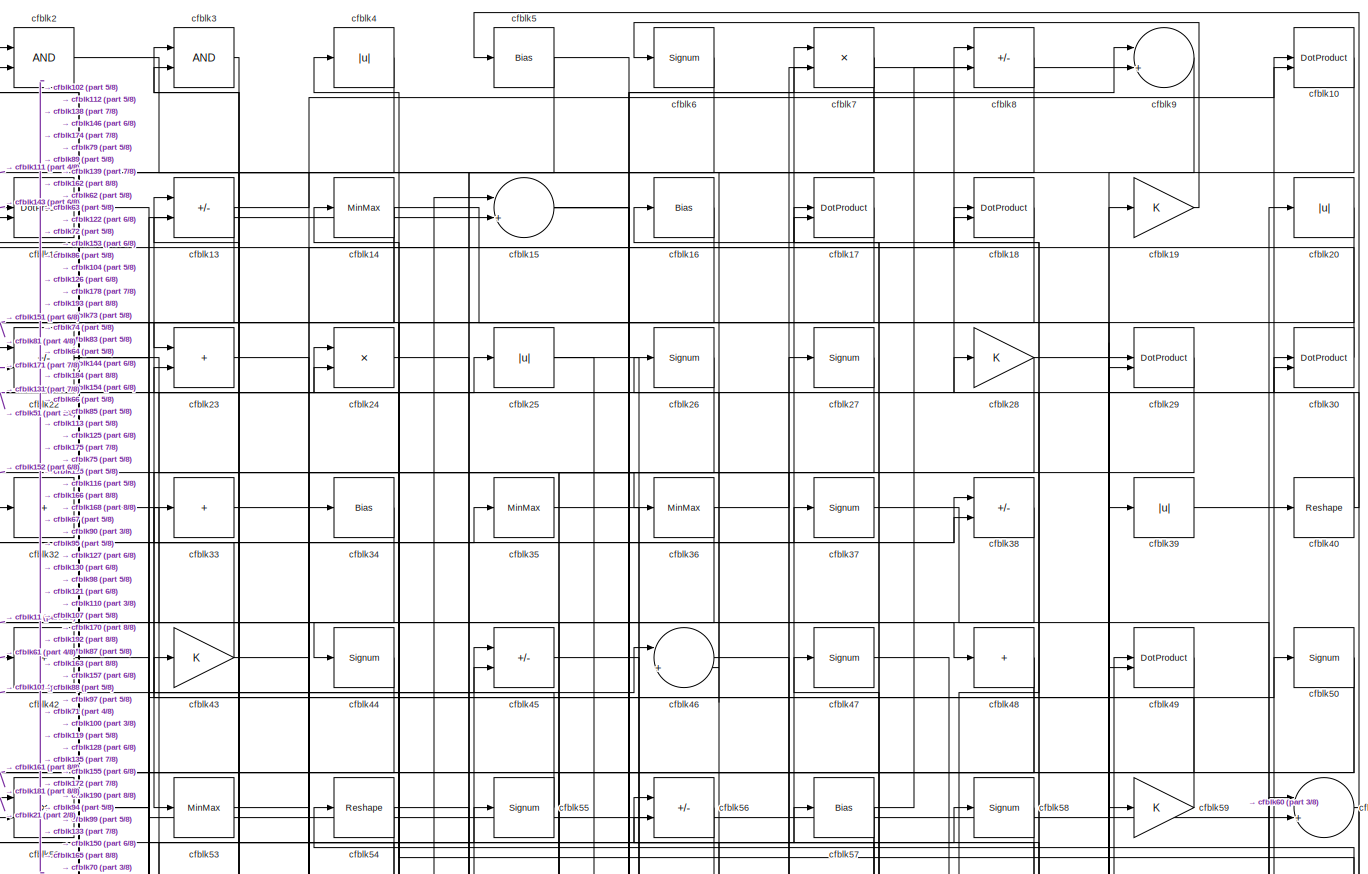
[diagram: root canvas - part 1/8, full width, top band]
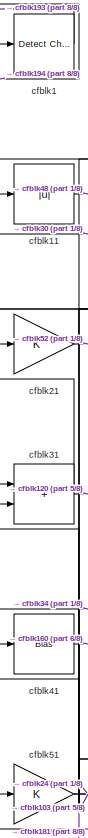
[diagram: root canvas - part 2/8, top left region]
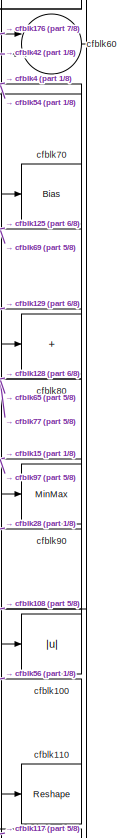
[diagram: root canvas - part 3/8, middle right region]
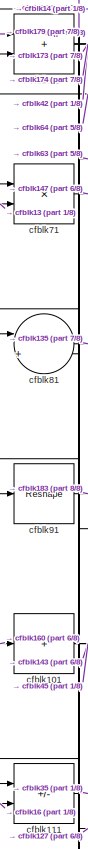
[diagram: root canvas - part 4/8, middle left region]
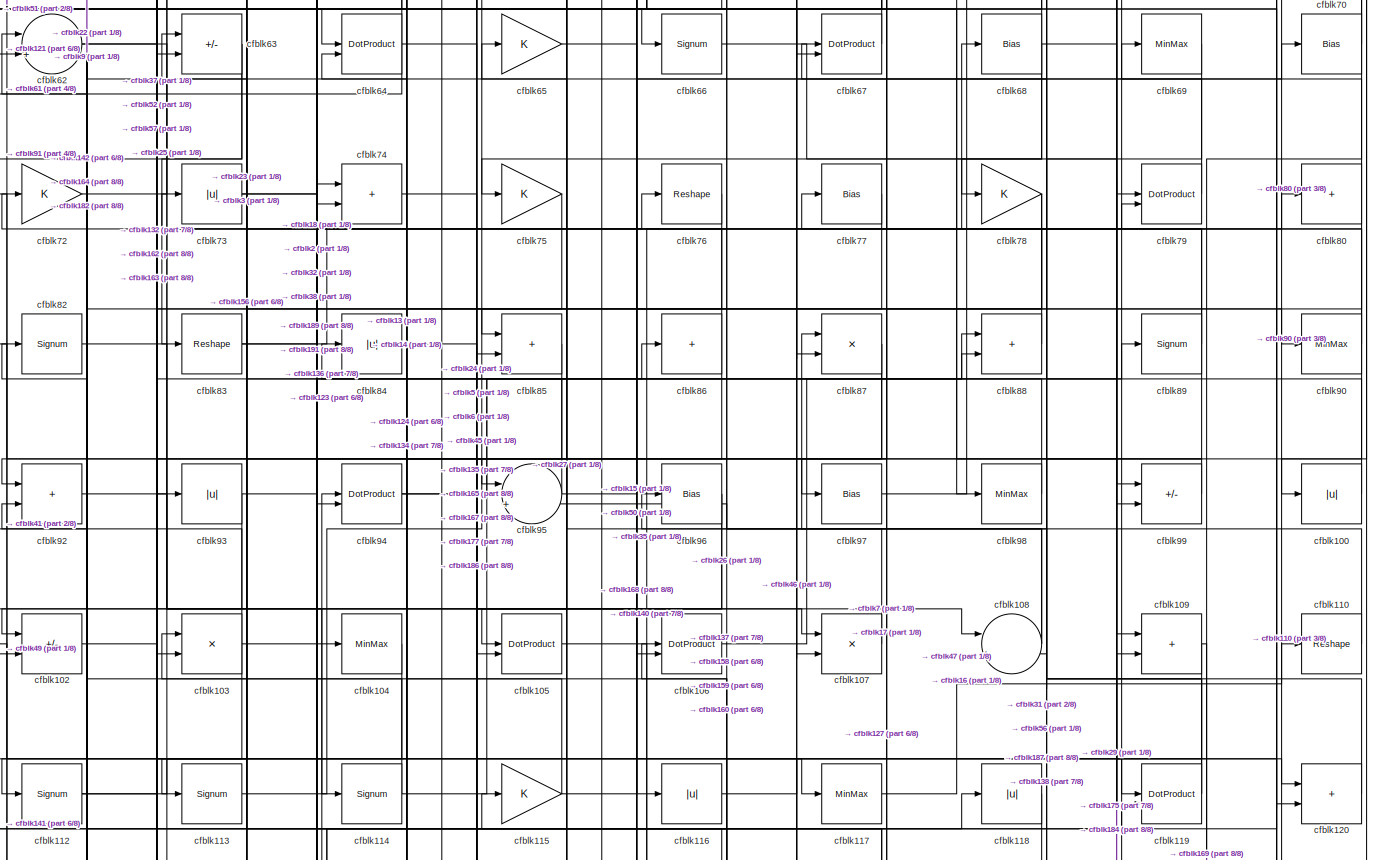
[diagram: root canvas - part 5/8, full width, middle band]
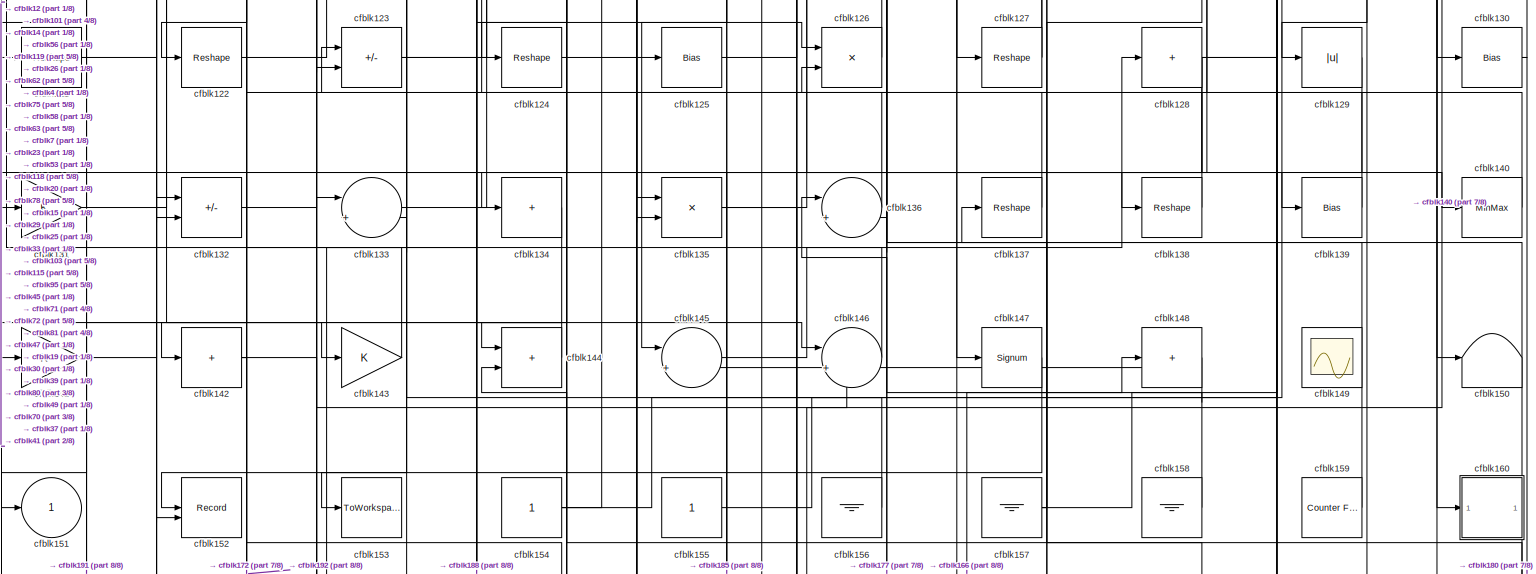
[diagram: root canvas - part 6/8, full width, bottom band]
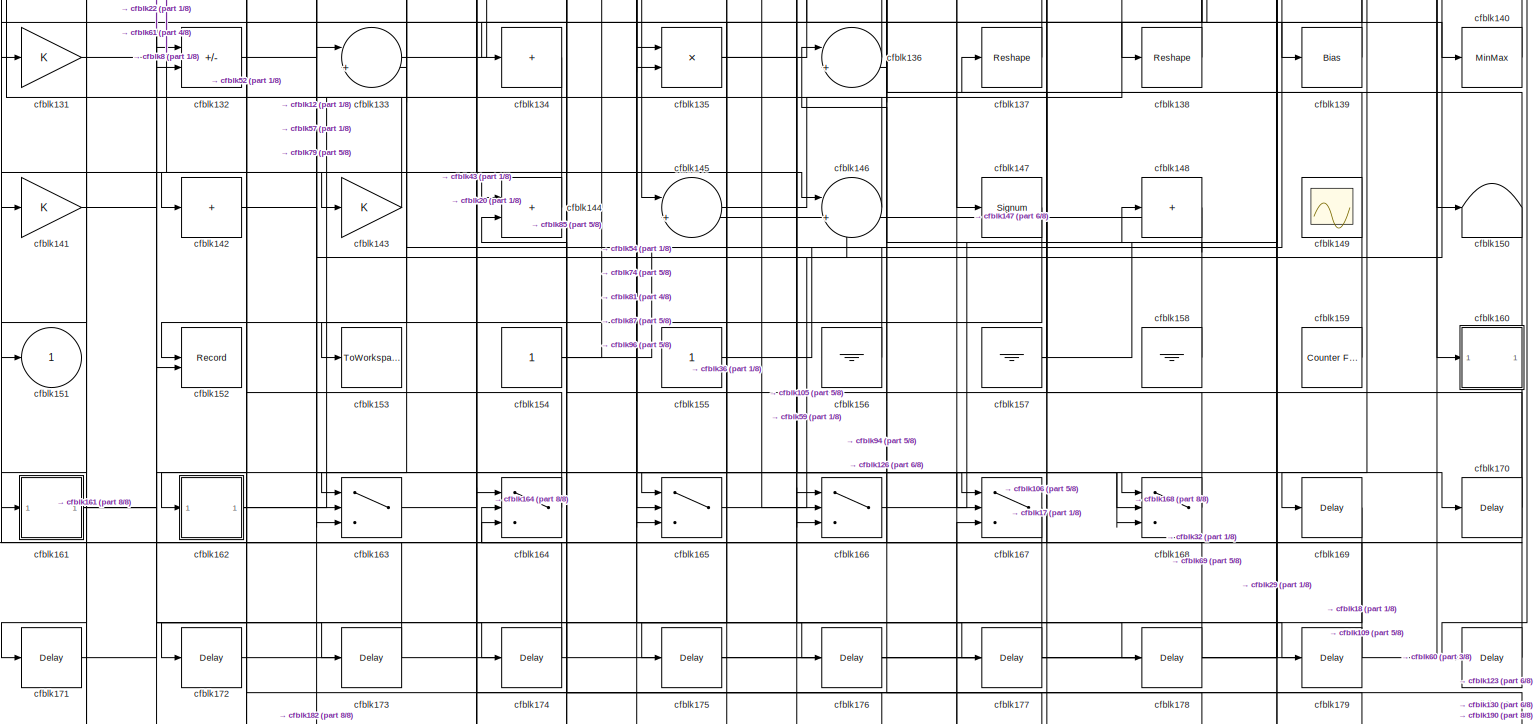
[diagram: root canvas - part 7/8, full width, bottom band]
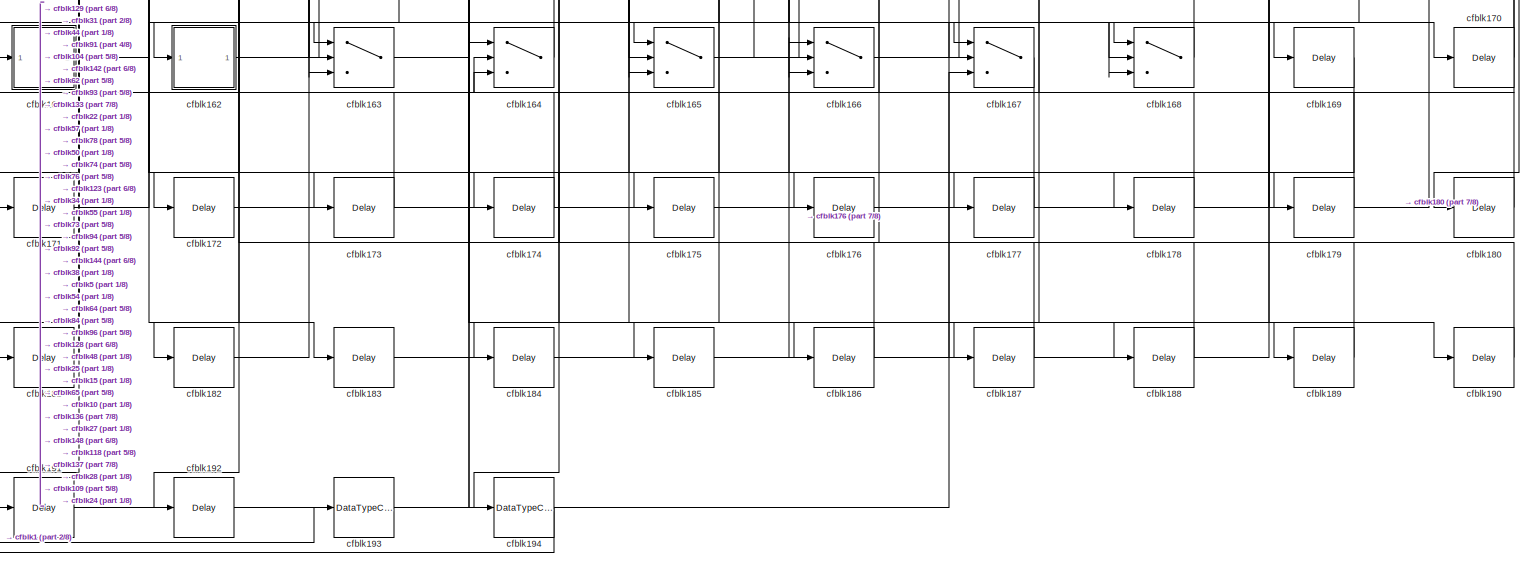
[diagram: root canvas - part 8/8, full width, bottom band]
MODEL slx_eba4e66bc9e5
KIND model
CONFIG AbsTol = auto
CONFIG EnableMultiTasking = off
CONFIG FixedStep = auto
CONFIG MaxStep = auto
CONFIG MinStep = auto
CONFIG RelTol = 1e-3
CONFIG SampleTimeConstraint = Unconstrained
CONFIG SolverName = VariableStepAuto
CONFIG StartTime = 0.0
CONFIG StopTime = 10.0
BLOCK [Reference] cfblk1  REF=simulink/Logic and Bit
Operations/Detect
Change
  LibrarySourceBlock = hdlsllib/Logic and Bit\nOperations/Detect\nChange
  SourceBlock = simulink/Logic and Bit\nOperations/Detect\nChange
  SourceType = Detect Change
BLOCK [DotProduct] cfblk10
  OutDataTypeStr = Inherit: Inherit via internal rule
BLOCK [Abs] cfblk100
  SaturateOnIntegerOverflow = off
BLOCK [Sum] cfblk101
  IconShape = rectangular
  Inputs = +
BLOCK [Sum] cfblk102
  IconShape = rectangular
  Inputs = +-
BLOCK [Product] cfblk103
  Inputs = */
  RndMeth = Zero
  SaturateOnIntegerOverflow = on
BLOCK [MinMax] cfblk104
BLOCK [DotProduct] cfblk105
  OutDataTypeStr = Inherit: Inherit via internal rule
BLOCK [DotProduct] cfblk106
  OutDataTypeStr = Inherit: Inherit via internal rule
BLOCK [Product] cfblk107
  Inputs = */
  RndMeth = Zero
  SaturateOnIntegerOverflow = on
BLOCK [Sum] cfblk108
  Inputs = |++
BLOCK [Sum] cfblk109
  IconShape = rectangular
BLOCK [Abs] cfblk11
  SaturateOnIntegerOverflow = off
BLOCK [Reshape] cfblk110
BLOCK [Sum] cfblk111
  IconShape = rectangular
  Inputs = +-
BLOCK [Signum] cfblk112
BLOCK [Signum] cfblk113
BLOCK [Signum] cfblk114
BLOCK [Gain] cfblk115
BLOCK [Abs] cfblk116
  SaturateOnIntegerOverflow = off
BLOCK [MinMax] cfblk117
BLOCK [Abs] cfblk118
  SaturateOnIntegerOverflow = off
BLOCK [DotProduct] cfblk119
  OutDataTypeStr = Inherit: Inherit via internal rule
BLOCK [DotProduct] cfblk12
  OutDataTypeStr = Inherit: Inherit via internal rule
BLOCK [Sum] cfblk120
  IconShape = rectangular
BLOCK [Reshape] cfblk121
BLOCK [Reshape] cfblk122
BLOCK [Sum] cfblk123
  IconShape = rectangular
  Inputs = +-
BLOCK [Reshape] cfblk124
BLOCK [Bias] cfblk125
  Bias = 0.0
  SaturateOnIntegerOverflow = off
BLOCK [Product] cfblk126
  Inputs = */
  RndMeth = Zero
  SaturateOnIntegerOverflow = on
BLOCK [Reshape] cfblk127
BLOCK [Sum] cfblk128
  IconShape = rectangular
  Inputs = +
BLOCK [Abs] cfblk129
  SaturateOnIntegerOverflow = off
BLOCK [Sum] cfblk13
  IconShape = rectangular
  Inputs = +-
BLOCK [Bias] cfblk130
  Bias = 0.0
  SaturateOnIntegerOverflow = off
BLOCK [Gain] cfblk131
BLOCK [Sum] cfblk132
  IconShape = rectangular
  Inputs = +-
BLOCK [Sum] cfblk133
  Inputs = |++
BLOCK [Sum] cfblk134
  IconShape = rectangular
  Inputs = +
BLOCK [Product] cfblk135
  Inputs = */
  RndMeth = Zero
  SaturateOnIntegerOverflow = on
BLOCK [Sum] cfblk136
  Inputs = |++
BLOCK [Reshape] cfblk137
BLOCK [Reshape] cfblk138
BLOCK [Bias] cfblk139
  Bias = 0.0
  SaturateOnIntegerOverflow = off
BLOCK [MinMax] cfblk14
BLOCK [MinMax] cfblk140
BLOCK [Gain] cfblk141
BLOCK [Sum] cfblk142
  IconShape = rectangular
  Inputs = +
BLOCK [Gain] cfblk143
BLOCK [Sum] cfblk144
  IconShape = rectangular
BLOCK [Sum] cfblk145
  Inputs = |++
BLOCK [Sum] cfblk146
  Inputs = |++
BLOCK [Signum] cfblk147
BLOCK [Sum] cfblk148
  IconShape = rectangular
  Inputs = +
BLOCK [Scope] cfblk149
  Floating = on
  NumInputPorts = 1
  ScopeSpecificationString = Simulink.scopes.TimeScopeBlockCfg('CurrentConfiguration', extmgr.ConfigurationSet(extmgr.Configuration('Core','General UI',true,'FigureColor',[0.156862745098039 0.156862745098039 0.156862745098039]),extmgr.Configuration('Core','Source UI',true),extmgr.Configuration('Sources','WiredSimulink',true,'DataLoggingVariableName','ScopeData1','DataLoggingSaveFormat','StructureWithTime','DataLoggingLimitDat...<+2713ch>
BLOCK [Sum] cfblk15
  Inputs = |++
BLOCK [Terminator] cfblk150
BLOCK [Outport] cfblk151
  VectorParamsAs1DForOutWhenUnconnected = off
BLOCK [Record] cfblk152
  CompatibilityTag = XY
  FileSettingsInternal = {"entries":[{"content":{"excelSettings":{"content":{},"type":"Streamout.ExcelSettings"}},"type":"Streamout.FileSettingStorage","uuid":""}],"packageUris":["http:\/\/schema.mathworks.com\/mf0\/streamout_blocks\/R2020a"],"version":"1.0"}
  Layout = [1 1]
  SignalsInternal = {"entries":[{"content":{"signals":[{"content":{"blockPath":[],"dimensions":[1],"domain":"","lineColor":"#a2142f","plots":[1],"port":1,"sid":[""],"signalID":39,"signalName":"cfblk128"},"type":"RecordBlkView.Signal","uuid":""},{"content":{"blockPath":[],"dimensions":[1],"domain":"","lineColor":"#139fff","plots":[1],"port":2,"sid":[""],"signalID":43,"signalName":"cfblk26"},"type":"RecordBlkView.Signa...<+159ch>
  VisualizationBindings = {"xyplotplugin":{"info":[{"series":[{"bindingParametersList":[{"parameter":"X-Axis","signalID":39,"signalName":"cfblk128"},{"parameter":"Y-Axis","signalID":43,"signalName":"cfblk26"}],"seriesID":55489}],"subplotID":1}]}}
  st = -1
BLOCK [ToWorkspace] cfblk153
  MaxDataPoints = inf
  SampleTime = -1
  SaveFormat = Timeseries
  VariableName = simout
BLOCK [Constant] cfblk154
  SampleTime = -1
BLOCK [Constant] cfblk155
  SampleTime = -1
BLOCK [Ground] cfblk156
BLOCK [Ground] cfblk157
BLOCK [Ground] cfblk158
BLOCK [Reference] cfblk159  REF=hdlsllib/Sources/Counter
Free-Running
  SourceBlock = hdlsllib/Sources/Counter\nFree-Running
  SourceType = Counter Free-Running
BLOCK [Bias] cfblk16
  Bias = 0.0
  SaturateOnIntegerOverflow = off
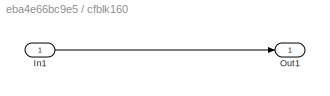
BLOCK [SubSystem] cfblk160
  LibrarySourceBlock = hdlsllib/Ports &\nSubsystems/Subsystem
BLOCK [Inport] cfblk160/In1
BLOCK [Outport] cfblk160/Out1
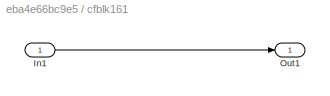
BLOCK [SubSystem] cfblk161
  LibrarySourceBlock = hdlsllib/Ports &\nSubsystems/Subsystem
BLOCK [Inport] cfblk161/In1
BLOCK [Outport] cfblk161/Out1
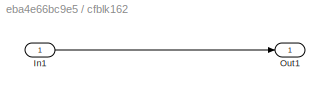
BLOCK [SubSystem] cfblk162
  LibrarySourceBlock = hdlsllib/Ports &\nSubsystems/Subsystem
BLOCK [Inport] cfblk162/In1
BLOCK [Outport] cfblk162/Out1
BLOCK [Switch] cfblk163
  InputSameDT = off
  SaturateOnIntegerOverflow = off
BLOCK [Switch] cfblk164
  InputSameDT = off
  SaturateOnIntegerOverflow = off
BLOCK [Switch] cfblk165
  InputSameDT = off
  SaturateOnIntegerOverflow = off
BLOCK [Switch] cfblk166
  InputSameDT = off
  SaturateOnIntegerOverflow = off
BLOCK [Switch] cfblk167
  InputSameDT = off
  SaturateOnIntegerOverflow = off
BLOCK [Switch] cfblk168
  InputSameDT = off
  SaturateOnIntegerOverflow = off
BLOCK [Delay] cfblk169
  InputPortMap = u0
  SampleTime = 1
BLOCK [DotProduct] cfblk17
  OutDataTypeStr = Inherit: Inherit via internal rule
BLOCK [Delay] cfblk170
  InputPortMap = u0
  SampleTime = 1
BLOCK [Delay] cfblk171
  InputPortMap = u0
  SampleTime = 1
BLOCK [Delay] cfblk172
  InputPortMap = u0
  SampleTime = 1
BLOCK [Delay] cfblk173
  InputPortMap = u0
  SampleTime = 1
BLOCK [Delay] cfblk174
  InputPortMap = u0
  SampleTime = 1
BLOCK [Delay] cfblk175
  InputPortMap = u0
  SampleTime = 1
BLOCK [Delay] cfblk176
  InputPortMap = u0
  SampleTime = 1
BLOCK [Delay] cfblk177
  InputPortMap = u0
  SampleTime = 1
BLOCK [Delay] cfblk178
  InputPortMap = u0
  SampleTime = 1
BLOCK [Delay] cfblk179
  InputPortMap = u0
  SampleTime = 1
BLOCK [DotProduct] cfblk18
  OutDataTypeStr = Inherit: Inherit via internal rule
BLOCK [Delay] cfblk180
  InputPortMap = u0
  SampleTime = 1
BLOCK [Delay] cfblk181
  InputPortMap = u0
  SampleTime = 1
BLOCK [Delay] cfblk182
  InputPortMap = u0
  SampleTime = 1
BLOCK [Delay] cfblk183
  InputPortMap = u0
  SampleTime = 1
BLOCK [Delay] cfblk184
  InputPortMap = u0
  SampleTime = 1
BLOCK [Delay] cfblk185
  InputPortMap = u0
  SampleTime = 1
BLOCK [Delay] cfblk186
  InputPortMap = u0
  SampleTime = 1
BLOCK [Delay] cfblk187
  InputPortMap = u0
  SampleTime = 1
BLOCK [Delay] cfblk188
  InputPortMap = u0
  SampleTime = 1
BLOCK [Delay] cfblk189
  InputPortMap = u0
  SampleTime = 1
BLOCK [Gain] cfblk19
BLOCK [Delay] cfblk190
  InputPortMap = u0
  SampleTime = 1
BLOCK [Delay] cfblk191
  InputPortMap = u0
  SampleTime = 1
BLOCK [Delay] cfblk192
  InputPortMap = u0
  SampleTime = 1
BLOCK [DataTypeConversion] cfblk193
  OutDataTypeStr = uint8
  RndMeth = Floor
  SaturateOnIntegerOverflow = off
BLOCK [DataTypeConversion] cfblk194
  OutDataTypeStr = uint8
  RndMeth = Floor
  SaturateOnIntegerOverflow = off
BLOCK [Logic] cfblk2
  AllPortsSameDT = off
  OutDataTypeStr = boolean
BLOCK [Abs] cfblk20
  SaturateOnIntegerOverflow = off
BLOCK [Gain] cfblk21
BLOCK [Sum] cfblk22
  IconShape = rectangular
  Inputs = +-
BLOCK [Sum] cfblk23
  IconShape = rectangular
BLOCK [Product] cfblk24
  Inputs = */
  RndMeth = Zero
  SaturateOnIntegerOverflow = on
BLOCK [Abs] cfblk25
  SaturateOnIntegerOverflow = off
BLOCK [Signum] cfblk26
BLOCK [Signum] cfblk27
BLOCK [Gain] cfblk28
BLOCK [DotProduct] cfblk29
  OutDataTypeStr = Inherit: Inherit via internal rule
BLOCK [Logic] cfblk3
  AllPortsSameDT = off
  OutDataTypeStr = boolean
BLOCK [DotProduct] cfblk30
  OutDataTypeStr = Inherit: Inherit via internal rule
BLOCK [Sum] cfblk31
  IconShape = rectangular
BLOCK [Sum] cfblk32
  IconShape = rectangular
  Inputs = +
BLOCK [Sum] cfblk33
  IconShape = rectangular
  Inputs = +
BLOCK [Bias] cfblk34
  Bias = 0.0
  SaturateOnIntegerOverflow = off
BLOCK [MinMax] cfblk35
BLOCK [MinMax] cfblk36
BLOCK [Signum] cfblk37
BLOCK [Sum] cfblk38
  IconShape = rectangular
  Inputs = +-
BLOCK [Abs] cfblk39
  SaturateOnIntegerOverflow = off
BLOCK [Abs] cfblk4
  SaturateOnIntegerOverflow = off
BLOCK [Reshape] cfblk40
BLOCK [Bias] cfblk41
  Bias = 0.0
  SaturateOnIntegerOverflow = off
BLOCK [Sum] cfblk42
  IconShape = rectangular
  Inputs = +
BLOCK [Gain] cfblk43
BLOCK [Signum] cfblk44
BLOCK [Sum] cfblk45
  IconShape = rectangular
  Inputs = +-
BLOCK [Sum] cfblk46
  Inputs = |++
BLOCK [Signum] cfblk47
BLOCK [Sum] cfblk48
  IconShape = rectangular
  Inputs = +
BLOCK [DotProduct] cfblk49
  OutDataTypeStr = Inherit: Inherit via internal rule
BLOCK [Bias] cfblk5
  Bias = 0.0
  SaturateOnIntegerOverflow = off
BLOCK [Signum] cfblk50
BLOCK [Gain] cfblk51
BLOCK [Product] cfblk52
  Inputs = */
  RndMeth = Zero
  SaturateOnIntegerOverflow = on
BLOCK [MinMax] cfblk53
BLOCK [Reshape] cfblk54
BLOCK [Signum] cfblk55
BLOCK [Sum] cfblk56
  IconShape = rectangular
  Inputs = +-
BLOCK [Bias] cfblk57
  Bias = 0.0
  SaturateOnIntegerOverflow = off
BLOCK [Signum] cfblk58
BLOCK [Gain] cfblk59
BLOCK [Signum] cfblk6
BLOCK [Sum] cfblk60
  Inputs = |++
BLOCK [Sum] cfblk61
  IconShape = rectangular
BLOCK [Sum] cfblk62
  Inputs = |++
BLOCK [Sum] cfblk63
  IconShape = rectangular
  Inputs = +-
BLOCK [DotProduct] cfblk64
  OutDataTypeStr = Inherit: Inherit via internal rule
BLOCK [Gain] cfblk65
BLOCK [Signum] cfblk66
BLOCK [DotProduct] cfblk67
  OutDataTypeStr = Inherit: Inherit via internal rule
BLOCK [Bias] cfblk68
  Bias = 0.0
  SaturateOnIntegerOverflow = off
BLOCK [MinMax] cfblk69
BLOCK [Product] cfblk7
  Inputs = */
  RndMeth = Zero
  SaturateOnIntegerOverflow = on
BLOCK [Bias] cfblk70
  Bias = 0.0
  SaturateOnIntegerOverflow = off
BLOCK [Product] cfblk71
  Inputs = */
  RndMeth = Zero
  SaturateOnIntegerOverflow = on
BLOCK [Gain] cfblk72
BLOCK [Abs] cfblk73
  SaturateOnIntegerOverflow = off
BLOCK [Sum] cfblk74
  IconShape = rectangular
BLOCK [Gain] cfblk75
BLOCK [Reshape] cfblk76
BLOCK [Bias] cfblk77
  Bias = 0.0
  SaturateOnIntegerOverflow = off
BLOCK [Gain] cfblk78
BLOCK [DotProduct] cfblk79
  OutDataTypeStr = Inherit: Inherit via internal rule
BLOCK [Sum] cfblk8
  IconShape = rectangular
  Inputs = +-
BLOCK [Sum] cfblk80
  IconShape = rectangular
  Inputs = +
BLOCK [Sum] cfblk81
  Inputs = |++
BLOCK [Signum] cfblk82
BLOCK [Reshape] cfblk83
BLOCK [Abs] cfblk84
  SaturateOnIntegerOverflow = off
BLOCK [Sum] cfblk85
  IconShape = rectangular
BLOCK [Sum] cfblk86
  IconShape = rectangular
  Inputs = +
BLOCK [Product] cfblk87
  Inputs = */
  RndMeth = Zero
  SaturateOnIntegerOverflow = on
BLOCK [Sum] cfblk88
  IconShape = rectangular
BLOCK [Signum] cfblk89
BLOCK [Sum] cfblk9
  Inputs = |++
BLOCK [MinMax] cfblk90
BLOCK [Reshape] cfblk91
BLOCK [Sum] cfblk92
  IconShape = rectangular
BLOCK [Abs] cfblk93
  SaturateOnIntegerOverflow = off
BLOCK [DotProduct] cfblk94
  OutDataTypeStr = Inherit: Inherit via internal rule
BLOCK [Sum] cfblk95
  Inputs = |++
BLOCK [Bias] cfblk96
  Bias = 0.0
  SaturateOnIntegerOverflow = off
BLOCK [Bias] cfblk97
  Bias = 0.0
  SaturateOnIntegerOverflow = off
BLOCK [MinMax] cfblk98
BLOCK [Sum] cfblk99
  IconShape = rectangular
  Inputs = +-
LINE cfblk100:1 -> cfblk28:1
NET cfblk101:1 -> cfblk143:1, cfblk45:2
LINE cfblk102:1 -> cfblk37:1
NET cfblk103:1 -> cfblk123:2, cfblk41:1, cfblk86:1
LINE cfblk104:1 -> cfblk182:1
LINE cfblk105:1 -> cfblk140:1
LINE cfblk106:1 -> cfblk89:1
LINE cfblk107:1 -> cfblk26:1
NET cfblk108:1 -> cfblk73:1, cfblk87:1
NET cfblk109:1 -> cfblk136:2, cfblk169:1
LINE cfblk10:1 -> cfblk49:2
LINE cfblk110:1 -> cfblk56:1
LINE cfblk111:1 -> cfblk35:1
NET cfblk112:1 -> cfblk117:1, cfblk88:2
LINE cfblk113:1 -> cfblk45:1
NET cfblk114:1 -> cfblk82:1, cfblk88:1
NET cfblk115:1 -> cfblk14:1, cfblk9:1
LINE cfblk116:1 -> cfblk119:1
LINE cfblk117:1 -> cfblk110:1
LINE cfblk118:1 -> cfblk187:1
NET cfblk119:1 -> cfblk56:2, cfblk96:1
LINE cfblk11:1 -> cfblk48:1
LINE cfblk120:1 -> cfblk67:1
LINE cfblk121:1 -> cfblk62:2
LINE cfblk122:1 -> cfblk58:1
NET cfblk123:1 -> cfblk118:1, cfblk188:1
LINE cfblk124:1 -> cfblk145:1
LINE cfblk125:1 -> cfblk70:1
LINE cfblk126:1 -> cfblk33:1
NET cfblk127:1 -> cfblk72:1, cfblk81:2
NET cfblk128:1 -> cfblk152:1, cfblk185:1, cfblk30:1, cfblk80:1
LINE cfblk129:1 -> cfblk191:1
LINE cfblk12:1 -> cfblk139:1
NET cfblk130:1 -> cfblk180:1, cfblk30:2
LINE cfblk131:1 -> cfblk8:1
LINE cfblk132:1 -> cfblk79:2
LINE cfblk133:1 -> cfblk20:1
LINE cfblk134:1 -> cfblk171:1
NET cfblk135:1 -> cfblk179:1, cfblk59:1
LINE cfblk136:1 -> cfblk94:1
LINE cfblk137:1 -> cfblk106:1
LINE cfblk138:1 -> cfblk32:1
LINE cfblk139:1 -> cfblk18:1
NET cfblk13:1 -> cfblk10:2, cfblk71:2
LINE cfblk140:1 -> cfblk123:1
LINE cfblk141:1 -> cfblk119:2
NET cfblk142:1 -> cfblk146:2, cfblk192:1
LINE cfblk143:1 -> cfblk12:1
LINE cfblk144:1 -> cfblk141:1
LINE cfblk145:1 -> cfblk128:1
LINE cfblk146:1 -> cfblk12:2
LINE cfblk147:1 -> cfblk172:1
LINE cfblk148:1 -> cfblk145:2
NET cfblk14:1 -> cfblk151:1, cfblk81:1, cfblk99:1
NET cfblk154:1 -> cfblk15:1, cfblk49:1
LINE cfblk155:1 -> cfblk39:1
LINE cfblk156:1 -> cfblk63:1
NET cfblk157:1 -> cfblk19:1, cfblk47:1
LINE cfblk158:1 -> cfblk115:1
LINE cfblk159:1 -> cfblk103:1
NET cfblk15:1 -> cfblk168:3, cfblk67:2, cfblk7:2, cfblk90:1
LINE cfblk160/In1:1 -> cfblk160/Out1:1
NET cfblk160:1 -> cfblk101:1, cfblk95:2
LINE cfblk161/In1:1 -> cfblk161/Out1:1
NET cfblk161:1 -> cfblk167:1, cfblk176:1
LINE cfblk162/In1:1 -> cfblk162/Out1:1
NET cfblk162:1 -> cfblk50:1, cfblk74:1
LINE cfblk163:1 -> cfblk55:1
LINE cfblk164:1 -> cfblk92:2
LINE cfblk165:1 -> cfblk10:1
LINE cfblk166:1 -> cfblk148:1
LINE cfblk167:1 -> cfblk164:2
LINE cfblk168:1 -> cfblk137:1
LINE cfblk169:1 -> cfblk194:1
LINE cfblk16:1 -> cfblk111:2
LINE cfblk170:1 -> cfblk24:2
LINE cfblk171:1 -> cfblk22:2
LINE cfblk172:1 -> cfblk29:1
LINE cfblk173:1 -> cfblk132:1
LINE cfblk174:1 -> cfblk52:2
LINE cfblk175:1 -> cfblk79:1
LINE cfblk176:1 -> cfblk60:1
LINE cfblk177:1 -> cfblk126:2
LINE cfblk178:1 -> cfblk17:2
LINE cfblk179:1 -> cfblk61:1
LINE cfblk17:1 -> cfblk44:1
LINE cfblk180:1 -> cfblk164:3
LINE cfblk181:1 -> cfblk31:2
LINE cfblk182:1 -> cfblk133:1
LINE cfblk183:1 -> cfblk166:1
LINE cfblk184:1 -> cfblk109:2
LINE cfblk185:1 -> cfblk167:3
LINE cfblk186:1 -> cfblk64:2
LINE cfblk187:1 -> cfblk62:1
LINE cfblk188:1 -> cfblk144:2
LINE cfblk189:1 -> cfblk164:1
LINE cfblk18:1 -> cfblk63:2
LINE cfblk190:1 -> cfblk136:1
LINE cfblk191:1 -> cfblk94:2
LINE cfblk192:1 -> cfblk27:1
LINE cfblk193:1 -> cfblk34:1
LINE cfblk194:1 -> cfblk1:1
LINE cfblk19:1 -> cfblk6:1
LINE cfblk1:1 -> cfblk193:1
LINE cfblk20:1 -> cfblk144:1
LINE cfblk21:1 -> cfblk52:1
NET cfblk22:1 -> cfblk107:2, cfblk15:2, cfblk170:1
LINE cfblk23:1 -> cfblk146:1
LINE cfblk24:1 -> cfblk66:1
NET cfblk25:1 -> cfblk130:1, cfblk166:2
LINE cfblk26:1 -> cfblk152:2
LINE cfblk27:1 -> cfblk75:1
NET cfblk28:1 -> cfblk190:1, cfblk53:1
LINE cfblk29:1 -> cfblk125:1
LINE cfblk2:1 -> cfblk74:2
LINE cfblk30:1 -> cfblk11:1
NET cfblk31:1 -> cfblk120:1, cfblk21:1
LINE cfblk32:1 -> cfblk104:1
LINE cfblk33:1 -> cfblk36:1
LINE cfblk34:1 -> cfblk51:1
LINE cfblk35:1 -> cfblk98:1
NET cfblk36:1 -> cfblk175:1, cfblk9:2
LINE cfblk37:1 -> cfblk150:1
LINE cfblk38:1 -> cfblk184:1
LINE cfblk39:1 -> cfblk40:1
LINE cfblk3:1 -> cfblk23:1
NET cfblk40:1 -> cfblk3:2, cfblk5:1
LINE cfblk41:1 -> cfblk160:1
LINE cfblk42:1 -> cfblk60:2
NET cfblk43:1 -> cfblk178:1, cfblk2:1
LINE cfblk44:1 -> cfblk161:1
LINE cfblk45:1 -> cfblk127:1
LINE cfblk46:1 -> cfblk87:2
LINE cfblk47:1 -> cfblk99:2
NET cfblk48:1 -> cfblk165:1, cfblk181:1
LINE cfblk49:1 -> cfblk102:2
LINE cfblk4:1 -> cfblk122:1
NET cfblk50:1 -> cfblk102:1, cfblk166:3
NET cfblk51:1 -> cfblk24:1, cfblk93:1
NET cfblk52:1 -> cfblk46:1, cfblk64:1
LINE cfblk53:1 -> cfblk126:1
NET cfblk54:1 -> cfblk133:2, cfblk168:2
LINE cfblk55:1 -> cfblk13:2
LINE cfblk56:1 -> cfblk121:1
NET cfblk57:1 -> cfblk131:1, cfblk163:3, cfblk8:2
LINE cfblk58:1 -> cfblk71:1
LINE cfblk59:1 -> cfblk43:1
NET cfblk5:1 -> cfblk116:1, cfblk165:2
LINE cfblk60:1 -> cfblk100:1
NET cfblk61:1 -> cfblk173:1, cfblk174:1, cfblk42:1
NET cfblk62:1 -> cfblk114:1, cfblk57:1
NET cfblk63:1 -> cfblk83:1, cfblk91:1
NET cfblk64:1 -> cfblk13:1, cfblk167:2, cfblk61:2
LINE cfblk65:1 -> cfblk168:1
LINE cfblk66:1 -> cfblk109:1
LINE cfblk67:1 -> cfblk7:1
NET cfblk68:1 -> cfblk105:1, cfblk120:2, cfblk31:1, cfblk78:1
LINE cfblk69:1 -> cfblk138:1
LINE cfblk6:1 -> cfblk85:2
NET cfblk70:1 -> cfblk129:1, cfblk4:1, cfblk54:1
LINE cfblk71:1 -> cfblk147:1
LINE cfblk72:1 -> cfblk25:1
NET cfblk73:1 -> cfblk189:1, cfblk18:2
LINE cfblk74:1 -> cfblk177:1
LINE cfblk75:1 -> cfblk142:1
LINE cfblk76:1 -> cfblk163:1
LINE cfblk77:1 -> cfblk85:1
NET cfblk78:1 -> cfblk124:1, cfblk163:2
LINE cfblk79:1 -> cfblk22:1
NET cfblk7:1 -> cfblk153:1, cfblk46:2
NET cfblk80:1 -> cfblk69:1, cfblk97:1
LINE cfblk81:1 -> cfblk135:1
LINE cfblk82:1 -> cfblk107:1
NET cfblk83:1 -> cfblk38:1, cfblk76:1
LINE cfblk84:1 -> cfblk186:1
LINE cfblk85:1 -> cfblk134:1
NET cfblk86:1 -> cfblk113:1, cfblk23:2
NET cfblk87:1 -> cfblk103:2, cfblk135:2
LINE cfblk88:1 -> cfblk17:1
NET cfblk89:1 -> cfblk105:2, cfblk2:2, cfblk68:1
LINE cfblk8:1 -> cfblk111:1
NET cfblk90:1 -> cfblk108:2, cfblk65:1, cfblk77:1
LINE cfblk91:1 -> cfblk183:1
LINE cfblk92:1 -> cfblk108:1
NET cfblk93:1 -> cfblk162:1, cfblk95:1
NET cfblk94:1 -> cfblk106:2, cfblk29:2
NET cfblk95:1 -> cfblk38:2, cfblk84:1
NET cfblk96:1 -> cfblk132:2, cfblk165:3
LINE cfblk97:1 -> cfblk16:1
LINE cfblk98:1 -> cfblk3:1
LINE cfblk99:1 -> cfblk92:1
LINE cfblk9:1 -> cfblk112:1
note: NET lines group one-source signal fan-out (src -> all destinations, sorted); 1:1 wires keep LINE
